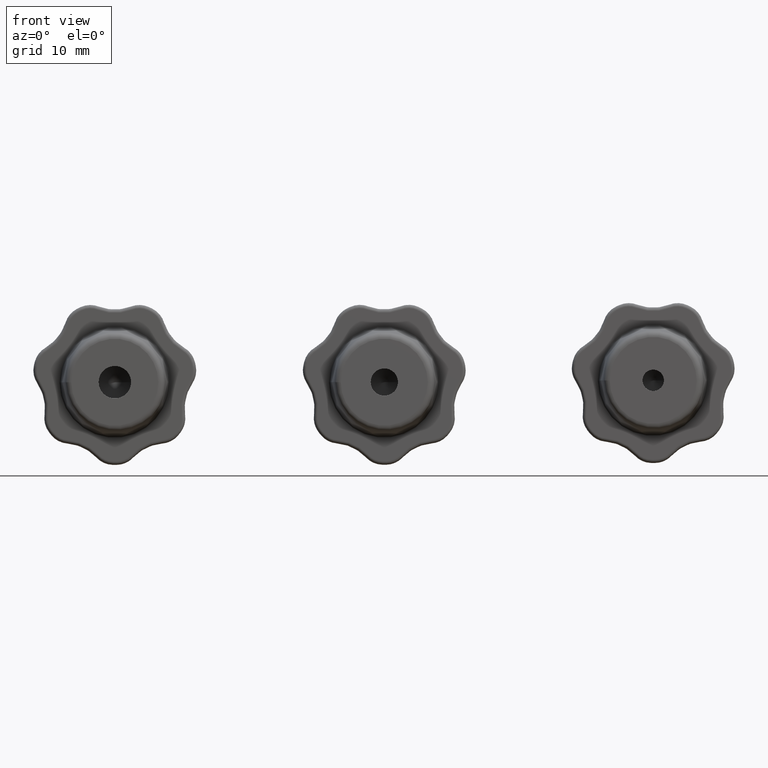
[diagram: clean part render]
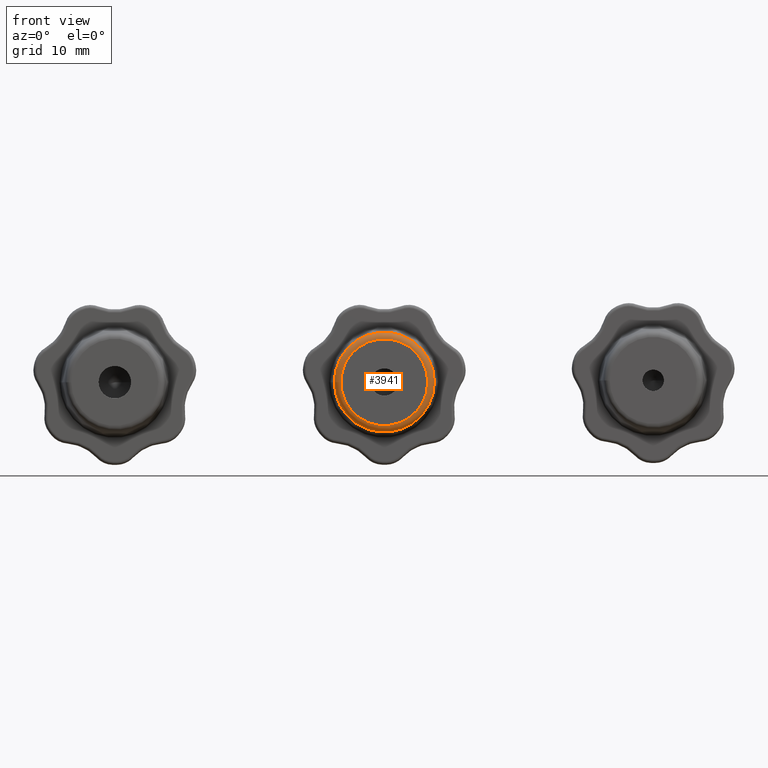
[diagram: same view with one face highlighted and labeled with its STEP entity id]
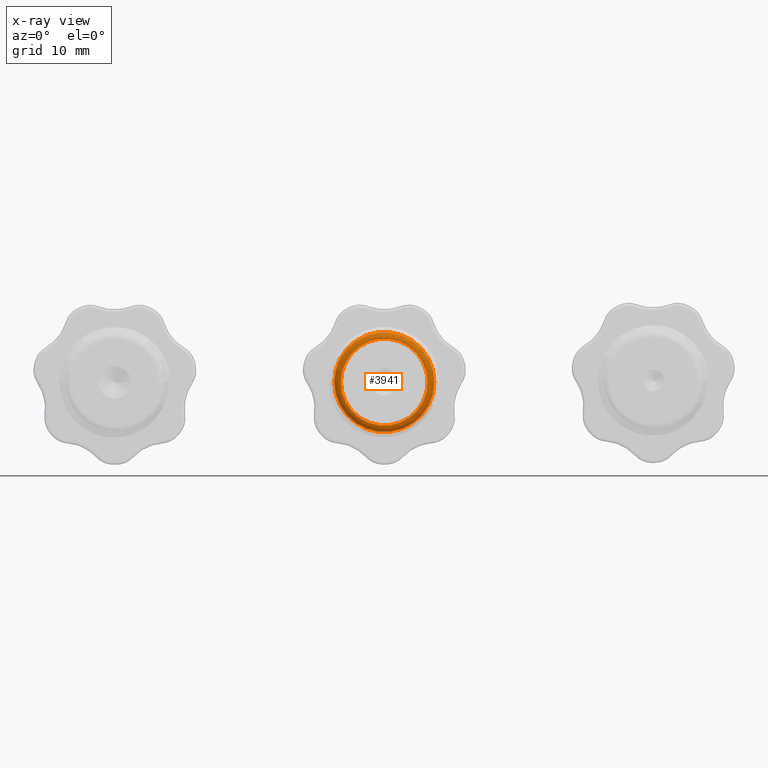
[diagram: x-ray of the same camera — body ghosted, the highlighted face saturated]
A machine part, front view. The second image highlights one B-rep face of the part: STEP entity #3941.
The next image is the same camera in x-ray: the body ghosted, the highlighted face saturated — about 0% of this face is hidden behind the body in this view.
In plain terms, the highlighted toroidal blend (fillet) surface has major radius 6.5758 mm and minor (blend) radius 1 mm.
Its self-contained STEP definition (entity closure, byte-faithful):
#285=TOROIDAL_SURFACE('',#4443,6.57583586565548,1.);
#522=FACE_BOUND('',#1084,.T.);
#797=FACE_OUTER_BOUND('',#1083,.T.);
#1083=EDGE_LOOP('',(#3339));
#1084=EDGE_LOOP('',(#3340));
#1449=CIRCLE('',#4442,7.57273401430895);
#1450=CIRCLE('',#4444,6.57583586565548);
#1817=VERTEX_POINT('',#7937);
#1818=VERTEX_POINT('',#7940);
#2338=EDGE_CURVE('',#1817,#1817,#1449,.T.);
#2339=EDGE_CURVE('',#1818,#1818,#1450,.T.);
#3339=ORIENTED_EDGE('',*,*,#2339,.T.);
#3340=ORIENTED_EDGE('',*,*,#2338,.T.);
#3941=ADVANCED_FACE('',(#797,#522),#285,.T.);
#4442=AXIS2_PLACEMENT_3D('',#7938,#5515,#5516);
#4443=AXIS2_PLACEMENT_3D('',#7939,#5517,#5518);
#4444=AXIS2_PLACEMENT_3D('',#7941,#5519,#5520);
#5515=DIRECTION('center_axis',(0.,-1.,0.));
#5516=DIRECTION('ref_axis',(1.,0.,0.));
#5517=DIRECTION('center_axis',(-1.05688744923203E-32,1.,0.));
#5518=DIRECTION('ref_axis',(0.,0.,1.));
#5519=DIRECTION('center_axis',(-1.05688744923203E-32,1.,0.));
#5520=DIRECTION('ref_axis',(1.,1.05688744923203E-32,1.22464679914735E-16));
#7937=CARTESIAN_POINT('',(-7.57273401430895,-8.57870248542001,-1.85478489428355E-15));
#7938=CARTESIAN_POINT('Origin',(0.,-8.57870248542001,-9.27392447141774E-16));
#7939=CARTESIAN_POINT('Origin',(8.98354331847227E-32,-8.5,0.));
#7940=CARTESIAN_POINT('',(-6.57583586565548,-9.5,0.));
#7941=CARTESIAN_POINT('Origin',(1.00404307677043E-31,-9.5,0.));